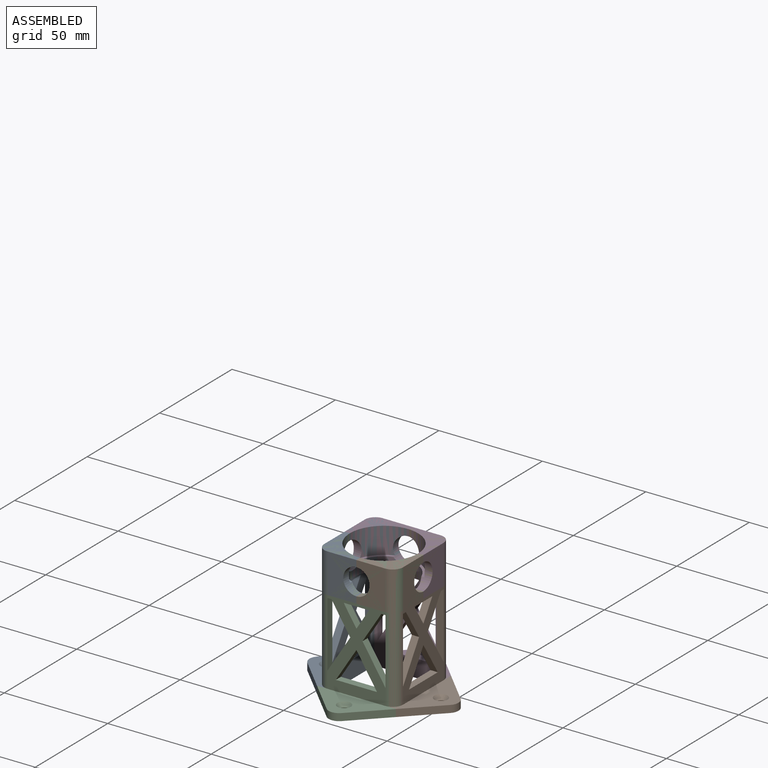
[diagram: assembled view]
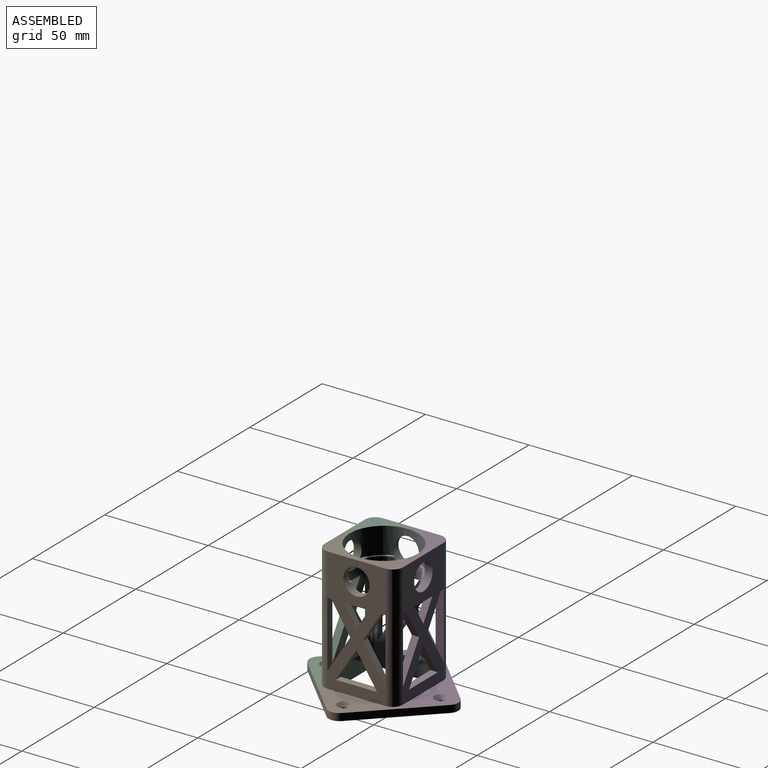
[diagram: assembled view, second angle]
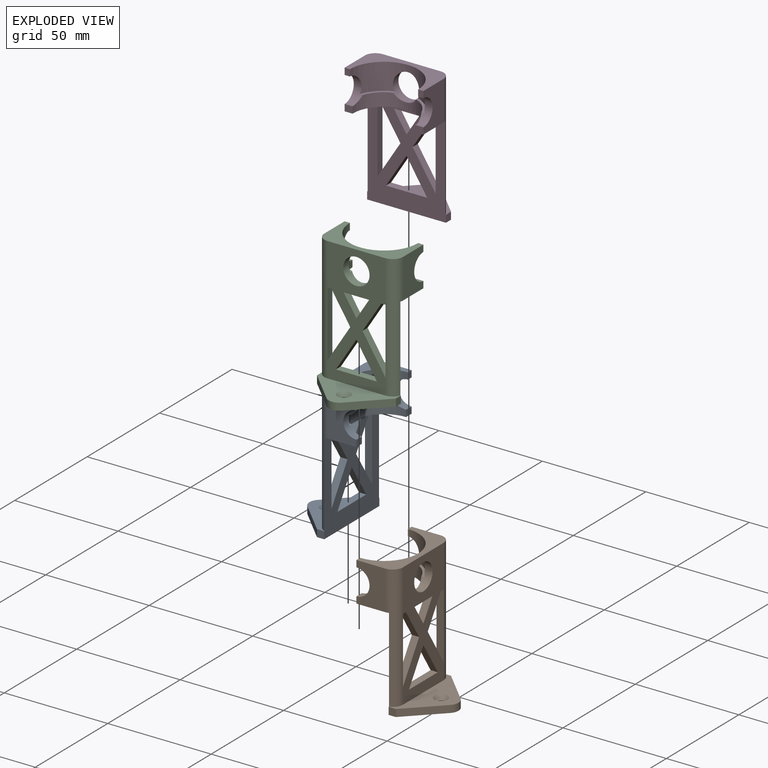
[diagram: exploded view]
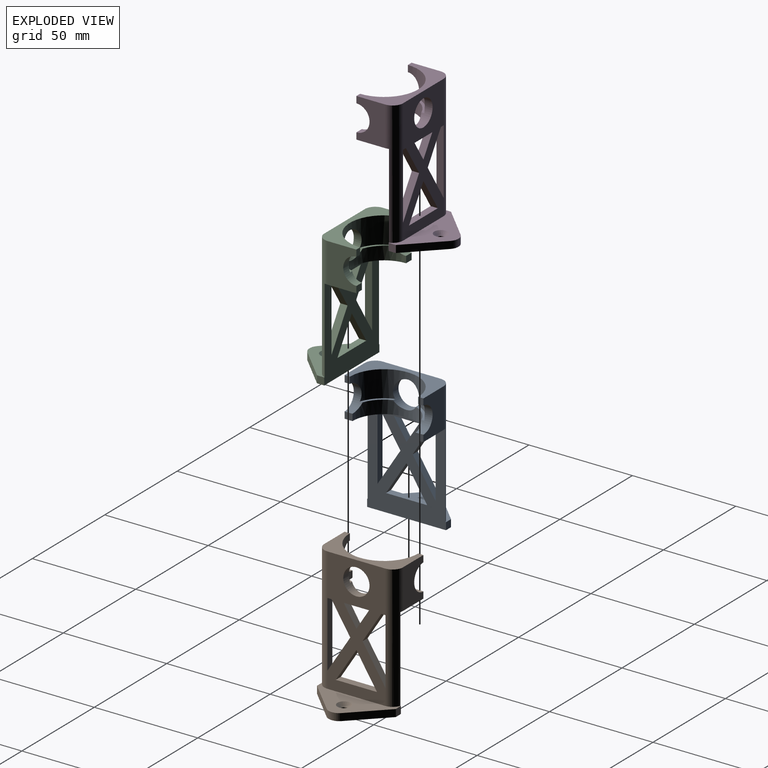
[diagram: exploded view, second angle]
ASSEMBLY  parts=4 mates=3
PART A: 42 faces, bbox 38.1x36x63.5 mm
  f0: plane 3.81x3.18mm, normal (0,1,0), area 12.1mm2, adj f2,f12,f15,f41
  f1: plane 3.81x3.18mm, normal (0,1,0), area 12.1mm2, adj f3,f12,f15,f40
  f2: plane 19.05x13.97mm, normal (1,0,0), area 202.8mm2, adj f0,f7,f9,f12,f39,f41
  f3: plane 19.05x13.97mm, normal (-1,0,0), area 202.8mm2, adj f1,f8,f9,f12,f38,f40
  f4: plane 60x27.94mm, normal (0,-1,0), area 958.2mm2, adj f9,f10,f23,f24,f26,f27,f28,f29
  f5: plane 44.45x38.1mm, normal (0,1,0), area 1076.3mm2, adj f10,f11,f12,f13,f14,f24,f25,f26
  f6: plane 10.07x10.07mm, normal (0,0,1), area 17.4mm2, adj f15,f17,f23,f40
  f7: plane 3.18x2.54mm, normal (0,1,0), area 8.1mm2, adj f2,f9,f17,f41
  f8: plane 3.18x2.54mm, normal (0,1,0), area 8.1mm2, adj f3,f9,f17,f40
  f9: plane 38.1x19.05mm, normal (0,0,1), area 286.6mm2, adj f2,f3,f4,f7,f8,f17,f38,f39
  f10: plane 38.1x20.45mm, normal (0,0,1), area 335.2mm2, adj f4,f5,f13,f14,f18,f19,f20,f22
  f11: plane 38.1x20.45mm, normal (0,0,-1), area 482.3mm2, adj f5,f13,f14,f18,f19,f20,f21
  f12: plane 38.1x15.55mm, normal (0,0,-1), area 227.4mm2, adj f0,f1,f2,f3,f5,f15,f38,f39
  f13: plane 3.5x3.5mm, normal (1,0,0), area 12.3mm2, adj f5,f10,f11,f19
  f14: plane 3.5x3.5mm, normal (-1,0,0), area 12.3mm2, adj f5,f10,f11,f18
  f15: cylinder r=15.24mm len=30.48mm, axis (0,0,1), area 253.8mm2, adj f0,f1,f6,f12,f16,f23,f40,f41
  f16: plane 10.07x10.07mm, normal (0,0,1), area 17.4mm2, adj f15,f17,f23,f41
  f17: cylinder r=16.51mm len=33.02mm, axis (0,0,1), area 450.5mm2, adj f6,f7,f8,f9,f16,f23,f40,f41
  f18: plane 15.46x15.46mm, normal (-0.71,-0.71,0), area 76.5mm2, adj f10,f11,f14,f20
  f19: plane 15.46x15.46mm, normal (0.71,-0.71,0), area 76.5mm2, adj f10,f11,f13,f20
  f20: cylinder r=5.08mm len=7.18mm, axis (0,0,1), area 27.9mm2, adj f10,f11,f18,f19
  f21: cylinder r=1.63mm len=3.26mm, axis (0,0,1), area 16.9mm2, adj f11,f22
  f22: cone r=1.63mm half-angle=41deg, axis (0,0,1), area 37.5mm2, adj f10,f21
  f23: cylinder r=6.35mm len=12.7mm, axis (0,-1,0), area 143.7mm2, adj f4,f6,f15,f16,f17
  f24: plane 3.5x1.98mm, normal (0,0,-1), area 6.9mm2, adj f4,f5,f25,f27,f38
  f25: plane 31.81x3.5mm, normal (1,0,0), area 111.3mm2, adj f5,f24,f26,f38
  f26: plane 17.46x11.09mm, normal (-0.84,0,0.54), area 72.4mm2, adj f4,f5,f25,f27,f38
  f27: plane 14.34x9.11mm, normal (-0.84,0,-0.54), area 59.5mm2, adj f4,f5,f24,f26
  f28: plane 9.68x6.15mm, normal (0.84,0,0.54), area 40.1mm2, adj f4,f5,f29,f30
  f29: plane 9.68x6.15mm, normal (-0.84,0,0.54), area 40.1mm2, adj f4,f5,f28,f30
  f30: plane 12.29x3.5mm, normal (0,0,-1), area 43mm2, adj f4,f5,f28,f29
  f31: plane 15.67x9.95mm, normal (0.84,0,-0.54), area 65mm2, adj f4,f5,f32,f33
  f32: plane 19.9x3.5mm, normal (0,0,1), area 69.7mm2, adj f4,f5,f31,f33
  f33: plane 15.67x9.95mm, normal (-0.84,0,-0.54), area 65mm2, adj f4,f5,f31,f32
  f34: plane 14.34x9.11mm, normal (0.84,0,-0.54), area 59.5mm2, adj f4,f5,f35,f37
  f35: plane 17.46x11.09mm, normal (0.84,0,0.54), area 72.4mm2, adj f4,f5,f34,f36,f39
  f36: plane 31.81x3.5mm, normal (-1,0,0), area 111.3mm2, adj f5,f35,f37,f39
  f37: plane 3.5x1.98mm, normal (0,0,-1), area 6.9mm2, adj f4,f5,f34,f36,f39
  f38: cylinder r=5.08mm len=60mm, axis (0,0,-1), area 410.4mm2, adj f3,f4,f5,f9,f10,f12,f24,f25
  f39: cylinder r=5.08mm len=60mm, axis (0,0,1), area 410.4mm2, adj f2,f4,f5,f9,f10,f12,f35,f36
  f40: cylinder r=6.35mm len=12.7mm, axis (1,0,0), area 71.9mm2, adj f1,f3,f6,f8,f15,f17
  f41: cylinder r=6.35mm len=12.7mm, axis (1,0,0), area 71.9mm2, adj f0,f2,f7,f15,f16,f17
PART B: same geometry as A
PART C: same geometry as A
PART D: same geometry as A
PLACE A rot(axis=(0,0,-1),90deg) t=(17.89,36.23,6.09)mm
PLACE B rot(axis=(0,0,1),90deg) t=(28.44,36.23,6.09)mm
PLACE C t=(23.16,30.96,6.09)mm
PLACE D rot(axis=(0,0,1),180deg) t=(23.16,41.5,6.09)mm
MATE fastened D.f15 <-> B.f15  axis (0,0,1) through (23.16,36.23,32.69)mm
MATE fastened A.f15 <-> B.f15  axis (0,0,1) through (23.16,36.23,32.69)mm
MATE fastened B.f15 <-> C.f15  axis (0,0,1) through (23.16,36.23,32.69)mm
